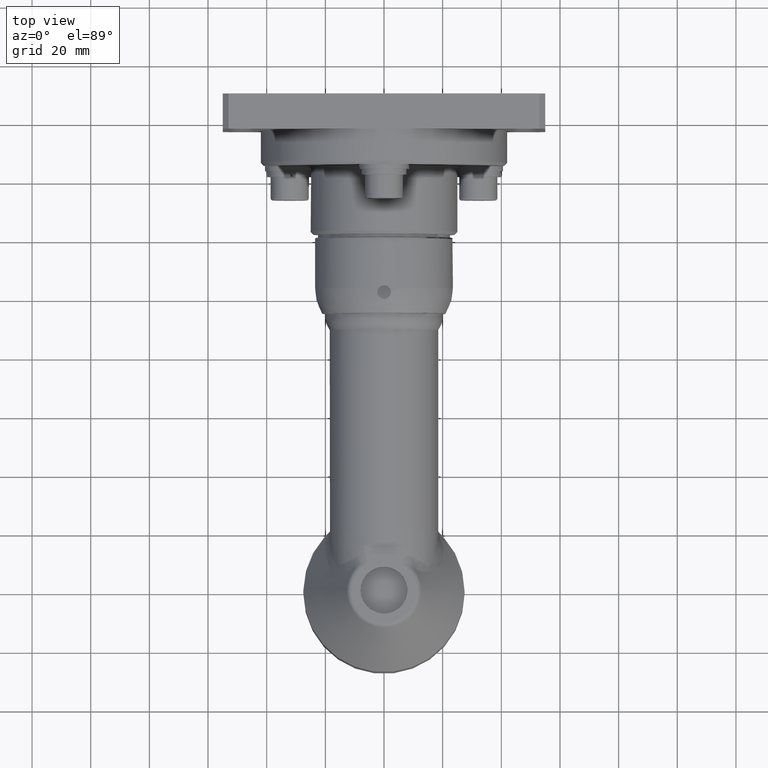
[diagram: clean part render]
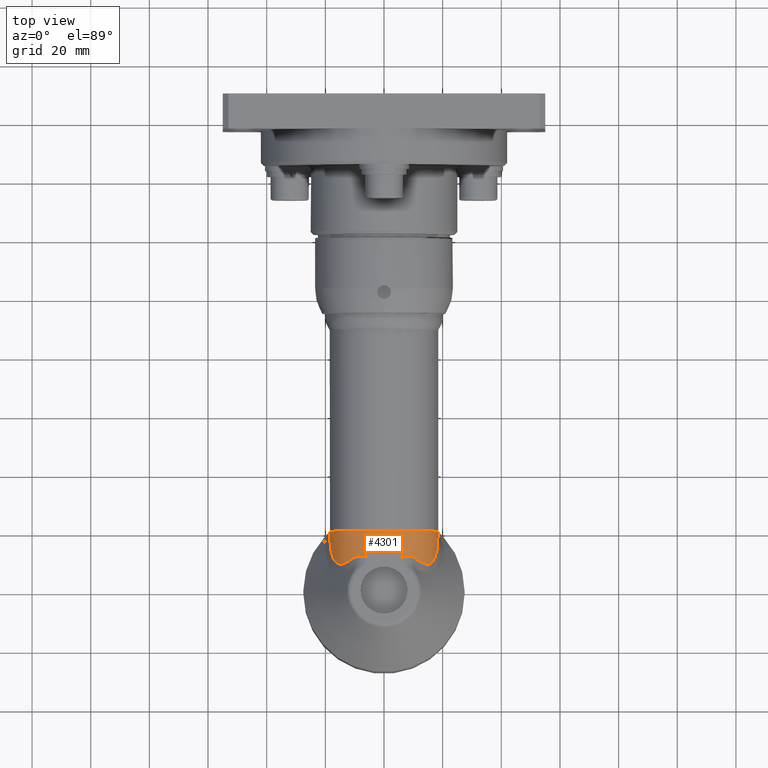
[diagram: same view with one face highlighted and labeled with its STEP entity id]
A machine part, top view. The second image highlights one B-rep face of the part: STEP entity #4301.
In plain terms, the highlighted face is a freeform B-spline surface patch.
Its self-contained STEP definition (entity closure, byte-faithful):
#60=(
BOUNDED_SURFACE()
B_SPLINE_SURFACE(2,2,((#7152,#7153,#7154,#7155,#7156,#7157,#7158),(#7159,
#7160,#7161,#7162,#7163,#7164,#7165),(#7166,#7167,#7168,#7169,#7170,#7171,
#7172)),.UNSPECIFIED.,.F.,.F.,.F.)
B_SPLINE_SURFACE_WITH_KNOTS((3,3),(3,2,2,3),(-0.121126270872491,2.03754240155482E-14),
(-1.70758370850614,-0.569194569502047,0.569194569502048,1.70758370850614),
 .UNSPECIFIED.)
GEOMETRIC_REPRESENTATION_ITEM()
RATIONAL_B_SPLINE_SURFACE(((1.,0.842335338146734,1.,0.842335338146734,1.,
0.842335338146734,1.),(0.998166613804507,0.8407910121658,0.998166613804507,
0.8407910121658,0.998166613804507,0.8407910121658,0.998166613804507),(1.,
0.842335338146734,1.,0.842335338146734,1.,0.842335338146734,1.)))
REPRESENTATION_ITEM('')
SURFACE()
);
#81=B_SPLINE_CURVE_WITH_KNOTS('',3,(#7040,#7041,#7042,#7043,#7044),
 .UNSPECIFIED.,.F.,.F.,(4,1,4),(9.08271931088579,9.25297437791504,9.82109216648994),
 .UNSPECIFIED.);
#84=B_SPLINE_CURVE_WITH_KNOTS('',3,(#7110,#7111,#7112,#7113,#7114,#7115,
#7116,#7117,#7118),.UNSPECIFIED.,.F.,.F.,(4,1,1,1,1,1,4),(5.30849752138562E-13,
0.433380369149309,0.866760738298087,1.30014110744687,1.73352147659564,2.16690184574442,
3.03366258404198),.UNSPECIFIED.);
#87=B_SPLINE_CURVE_WITH_KNOTS('',3,(#7174,#7175,#7176,#7177),
 .UNSPECIFIED.,.F.,.F.,(4,4),(0.973125122418284,1.34010919840439),
 .UNSPECIFIED.);
#88=B_SPLINE_CURVE_WITH_KNOTS('',3,(#7179,#7180,#7181,#7182,#7183,#7184,
#7185,#7186),.UNSPECIFIED.,.F.,.F.,(4,2,2,4),(4.92569755568121,4.99085080683284,
5.30410232021174,5.61735383359063),.UNSPECIFIED.);
#89=B_SPLINE_CURVE_WITH_KNOTS('',3,(#7188,#7189,#7190,#7191,#7192,#7193,
#7194,#7195),.UNSPECIFIED.,.F.,.F.,(4,2,2,4),(5.61735383359063,5.93060534696953,
6.24385686034842,6.30901011150006),.UNSPECIFIED.);
#90=B_SPLINE_CURVE_WITH_KNOTS('',3,(#7197,#7198,#7199,#7200),
 .UNSPECIFIED.,.F.,.F.,(4,4),(6.03686858696217,6.40385286913679),
 .UNSPECIFIED.);
#91=B_SPLINE_CURVE_WITH_KNOTS('',3,(#7202,#7203,#7204,#7205,#7206,#7207),
 .UNSPECIFIED.,.F.,.F.,(4,1,1,4),(14.3390161141995,14.9071338971868,15.0491633429336,
15.0774378922082),.UNSPECIFIED.);
#92=B_SPLINE_CURVE_WITH_KNOTS('',3,(#7208,#7209,#7210,#7211,#7212,#7213,
#7214,#7215,#7216),.UNSPECIFIED.,.F.,.F.,(4,1,1,1,1,1,4),(0.,0.866790507454673,
1.30018576118201,1.73358101490935,2.16697626863668,2.60037152236402,3.03376677609136),
 .UNSPECIFIED.);
#746=FACE_OUTER_BOUND('',#1001,.T.);
#1001=EDGE_LOOP('',(#2914,#2915,#2916,#2917,#2918,#2919,#2920,#2921,#2922,
#2923));
#1312=CIRCLE('',#4609,18.5);
#1313=CIRCLE('',#4610,18.5);
#1688=VERTEX_POINT('',#6975);
#1689=VERTEX_POINT('',#6977);
#1692=VERTEX_POINT('',#6993);
#1694=VERTEX_POINT('',#7028);
#1695=VERTEX_POINT('',#7039);
#1699=VERTEX_POINT('',#7173);
#1700=VERTEX_POINT('',#7178);
#1701=VERTEX_POINT('',#7187);
#1702=VERTEX_POINT('',#7196);
#1703=VERTEX_POINT('',#7201);
#2163=EDGE_CURVE('',#1688,#1689,#1312,.T.);
#2168=EDGE_CURVE('',#1692,#1688,#1313,.T.);
#2170=EDGE_CURVE('',#1694,#1695,#81,.T.);
#2175=EDGE_CURVE('',#1695,#1692,#84,.T.);
#2178=EDGE_CURVE('',#1694,#1699,#87,.T.);
#2179=EDGE_CURVE('',#1699,#1700,#88,.T.);
#2180=EDGE_CURVE('',#1700,#1701,#89,.T.);
#2181=EDGE_CURVE('',#1701,#1702,#90,.T.);
#2182=EDGE_CURVE('',#1703,#1702,#91,.T.);
#2183=EDGE_CURVE('',#1689,#1703,#92,.T.);
#2914=ORIENTED_EDGE('',*,*,#2175,.F.);
#2915=ORIENTED_EDGE('',*,*,#2170,.F.);
#2916=ORIENTED_EDGE('',*,*,#2178,.T.);
#2917=ORIENTED_EDGE('',*,*,#2179,.T.);
#2918=ORIENTED_EDGE('',*,*,#2180,.T.);
#2919=ORIENTED_EDGE('',*,*,#2181,.T.);
#2920=ORIENTED_EDGE('',*,*,#2182,.F.);
#2921=ORIENTED_EDGE('',*,*,#2183,.F.);
#2922=ORIENTED_EDGE('',*,*,#2163,.F.);
#2923=ORIENTED_EDGE('',*,*,#2168,.F.);
#4301=ADVANCED_FACE('',(#746),#60,.F.);
#4609=AXIS2_PLACEMENT_3D('',#6978,#5307,#5308);
#4610=AXIS2_PLACEMENT_3D('',#6998,#5309,#5310);
#5307=DIRECTION('center_axis',(5.24601003481621E-16,1.,-1.13751565510211E-30));
#5308=DIRECTION('ref_axis',(1.,-5.24601003481621E-16,2.39031970244941E-15));
#5309=DIRECTION('center_axis',(5.24601003481621E-16,1.,-1.13751565510211E-30));
#5310=DIRECTION('ref_axis',(1.,-5.24601003481621E-16,2.39031970244941E-15));
#6975=CARTESIAN_POINT('',(18.5,20.3469899493758,4.19553179168915E-14));
#6977=CARTESIAN_POINT('',(18.3271949084376,20.3469899493775,-2.52268245884011));
#6978=CARTESIAN_POINT('Origin',(1.16536390712704E-14,20.3469899493758,-2.08034917598912E-29));
#6993=CARTESIAN_POINT('',(-18.3271949084377,20.3469899493766,-2.52268245883904));
#6998=CARTESIAN_POINT('Origin',(1.16536390712704E-14,20.3469899493758,-2.08034917598912E-29));
#7028=CARTESIAN_POINT('',(-6.07286522223493,11.1619760054104,17.));
#7039=CARTESIAN_POINT('',(-10.7975973533664,10.9052396505611,14.4351427990508));
#7040=CARTESIAN_POINT('Ctrl Pts',(-6.07277269396148,11.1620563604428,16.9998205050993));
#7041=CARTESIAN_POINT('Ctrl Pts',(-6.44629217632703,11.3768192982929,16.8886779556892));
#7042=CARTESIAN_POINT('Ctrl Pts',(-8.15450973418274,11.9668346934964,16.2795972649238));
#7043=CARTESIAN_POINT('Ctrl Pts',(-9.78496977103272,11.5801801506544,15.2773145702504));
#7044=CARTESIAN_POINT('Ctrl Pts',(-10.7975973533667,10.905239650561,14.4351427990505));
#7110=CARTESIAN_POINT('Ctrl Pts',(-10.7975973533692,10.9052396505592,14.4351427990484));
#7111=CARTESIAN_POINT('Ctrl Pts',(-11.5700655356143,10.3903711339101,13.7927043462679));
#7112=CARTESIAN_POINT('Ctrl Pts',(-13.0141581267545,9.40361700549323,12.3737476520664));
#7113=CARTESIAN_POINT('Ctrl Pts',(-14.9712817490728,8.69363666918302,9.77632475849179));
#7114=CARTESIAN_POINT('Ctrl Pts',(-16.576290723348,9.63699294005033,6.96787126504409));
#7115=CARTESIAN_POINT('Ctrl Pts',(-17.6482366715506,11.774416564186,4.37635556079295));
#7116=CARTESIAN_POINT('Ctrl Pts',(-18.4825565406479,15.3049059080482,1.15599080652889));
#7117=CARTESIAN_POINT('Ctrl Pts',(-18.5254508763399,18.3216022501325,-1.08236017302297));
#7118=CARTESIAN_POINT('Ctrl Pts',(-18.3271949084377,20.3469899493774,-2.52268245883905));
#7152=CARTESIAN_POINT('Ctrl Pts',(-17.641932623375,8.93942967882491,-2.4283581961863));
#7153=CARTESIAN_POINT('Ctrl Pts',(-19.1956758563972,8.93942967882491,8.85952901668471));
#7154=CARTESIAN_POINT('Ctrl Pts',(-9.59783792819829,8.93942967882491,15.0005405676172));
#7155=CARTESIAN_POINT('Ctrl Pts',(6.11051068503326E-13,8.9394296788249,
21.1415521185496));
#7156=CARTESIAN_POINT('Ctrl Pts',(9.59783792819917,8.9394296788249,15.0005405676166));
#7157=CARTESIAN_POINT('Ctrl Pts',(19.1956758563977,8.93942967882489,8.85952901668361));
#7158=CARTESIAN_POINT('Ctrl Pts',(17.6419326233749,8.93942967882489,-2.42835819618731));
#7159=CARTESIAN_POINT('Ctrl Pts',(-18.3271949084378,14.6222376932224,-2.52268245883906));
#7160=CARTESIAN_POINT('Ctrl Pts',(-19.9412898988888,14.6222376932224,9.20365804314463));
#7161=CARTESIAN_POINT('Ctrl Pts',(-9.97064494944408,14.6222376932224,15.583203755715));
#7162=CARTESIAN_POINT('Ctrl Pts',(6.37547009002565E-13,14.6222376932224,
21.9627494682853));
#7163=CARTESIAN_POINT('Ctrl Pts',(9.97064494944499,14.6222376932224,15.5832037557144));
#7164=CARTESIAN_POINT('Ctrl Pts',(19.9412898988893,14.6222376932224,9.20365804314348));
#7165=CARTESIAN_POINT('Ctrl Pts',(18.3271949084377,14.6222376932224,-2.52268245884012));
#7166=CARTESIAN_POINT('Ctrl Pts',(-18.3271949084377,20.3469899493778,-2.52268245883905));
#7167=CARTESIAN_POINT('Ctrl Pts',(-19.9412898988887,20.3469899493778,9.20365804314457));
#7168=CARTESIAN_POINT('Ctrl Pts',(-9.97064494944402,20.3469899493778,15.5832037557149));
#7169=CARTESIAN_POINT('Ctrl Pts',(6.40550219780824E-13,20.3469899493778,
21.9627494682852));
#7170=CARTESIAN_POINT('Ctrl Pts',(9.97064494944494,20.3469899493778,15.5832037557143));
#7171=CARTESIAN_POINT('Ctrl Pts',(19.9412898988892,20.3469899493778,9.20365804314342));
#7172=CARTESIAN_POINT('Ctrl Pts',(18.3271949084376,20.3469899493778,-2.5226824588401));
#7173=CARTESIAN_POINT('',(-6.90406192264428,15.,17.));
#7174=CARTESIAN_POINT('Ctrl Pts',(-6.07286522223491,11.1619760054104,17.));
#7175=CARTESIAN_POINT('Ctrl Pts',(-6.42481989853922,12.3731978953712,17.));
#7176=CARTESIAN_POINT('Ctrl Pts',(-6.70472593428463,13.6777894775189,17.));
#7177=CARTESIAN_POINT('Ctrl Pts',(-6.90406192264427,15.,17.));
#7178=CARTESIAN_POINT('',(-3.44328290496039E-14,16.4182185597697,18.4182185597697));
#7179=CARTESIAN_POINT('Ctrl Pts',(-6.90406192264428,15.,17.));
#7180=CARTESIAN_POINT('Ctrl Pts',(-6.71387035980131,15.0822784828557,17.0822784828557));
#7181=CARTESIAN_POINT('Ctrl Pts',(-6.52329451164756,15.1605565770324,17.1605565770323));
#7182=CARTESIAN_POINT('Ctrl Pts',(-5.41879743859891,15.5913047970315,17.5913047970315));
#7183=CARTESIAN_POINT('Ctrl Pts',(-4.36436988072057,15.9050772554157,17.9050772554157));
#7184=CARTESIAN_POINT('Ctrl Pts',(-2.1772081403015,16.3189336739459,18.3189336739459));
#7185=CARTESIAN_POINT('Ctrl Pts',(-1.04417171126302,16.4182185597697,18.4182185597697));
#7186=CARTESIAN_POINT('Ctrl Pts',(-3.60822483003176E-14,16.4182185597697,
18.4182185597697));
#7187=CARTESIAN_POINT('',(6.90406192264422,15.,17.));
#7188=CARTESIAN_POINT('Ctrl Pts',(-3.80251385934116E-14,16.4182185597697,
18.4182185597697));
#7189=CARTESIAN_POINT('Ctrl Pts',(1.04417171126295,16.4182185597697,18.4182185597697));
#7190=CARTESIAN_POINT('Ctrl Pts',(2.17720814030143,16.3189336739459,18.3189336739459));
#7191=CARTESIAN_POINT('Ctrl Pts',(4.3643698807205,15.9050772554157,17.9050772554157));
#7192=CARTESIAN_POINT('Ctrl Pts',(5.41879743859885,15.5913047970315,17.5913047970315));
#7193=CARTESIAN_POINT('Ctrl Pts',(6.52329451164751,15.1605565770324,17.1605565770324));
#7194=CARTESIAN_POINT('Ctrl Pts',(6.71387035980125,15.0822784828557,17.0822784828558));
#7195=CARTESIAN_POINT('Ctrl Pts',(6.90406192264422,15.,17.));
#7196=CARTESIAN_POINT('',(6.07286522223486,11.1619760054104,17.));
#7197=CARTESIAN_POINT('Ctrl Pts',(6.90406192264422,15.,17.));
#7198=CARTESIAN_POINT('Ctrl Pts',(6.70472650538341,13.6777932656602,17.));
#7199=CARTESIAN_POINT('Ctrl Pts',(6.42482090821343,12.3732013700787,17.));
#7200=CARTESIAN_POINT('Ctrl Pts',(6.07286522223485,11.1619760054104,17.));
#7201=CARTESIAN_POINT('',(10.7975973533699,10.9052396505588,14.4351427990479));
#7202=CARTESIAN_POINT('Ctrl Pts',(10.7975973533699,10.9052396505587,14.4351427990479));
#7203=CARTESIAN_POINT('Ctrl Pts',(9.78496978099561,11.580180144015,15.2773145619651));
#7204=CARTESIAN_POINT('Ctrl Pts',(8.21275003789452,11.9533790642612,16.2424457129711));
#7205=CARTESIAN_POINT('Ctrl Pts',(6.51455470971407,11.3980798646591,16.8644359647849));
#7206=CARTESIAN_POINT('Ctrl Pts',(6.13541617605571,11.1970763634849,16.9811771865703));
#7207=CARTESIAN_POINT('Ctrl Pts',(6.07304870965482,11.1615214118567,16.9997458481133));
#7208=CARTESIAN_POINT('Ctrl Pts',(18.3271949084377,20.3469899493778,-2.52268245883922));
#7209=CARTESIAN_POINT('Ctrl Pts',(18.5254576855005,18.3215326875856,-1.08231070472277));
#7210=CARTESIAN_POINT('Ctrl Pts',(18.4824186939185,15.3075342581655,1.15510642884828));
#7211=CARTESIAN_POINT('Ctrl Pts',(17.6480034839913,11.7762455926093,4.37651301748338));
#7212=CARTESIAN_POINT('Ctrl Pts',(16.5755884630514,9.64014573180767,6.96871125807205));
#7213=CARTESIAN_POINT('Ctrl Pts',(14.9726862350523,8.6893221408592,9.77437251980854));
#7214=CARTESIAN_POINT('Ctrl Pts',(13.0150841985691,9.4025584960546,12.3728305608643));
#7215=CARTESIAN_POINT('Ctrl Pts',(11.5700920662664,10.390353450596,13.7926822815258));
#7216=CARTESIAN_POINT('Ctrl Pts',(10.7975973533699,10.9052396505587,14.4351427990479));